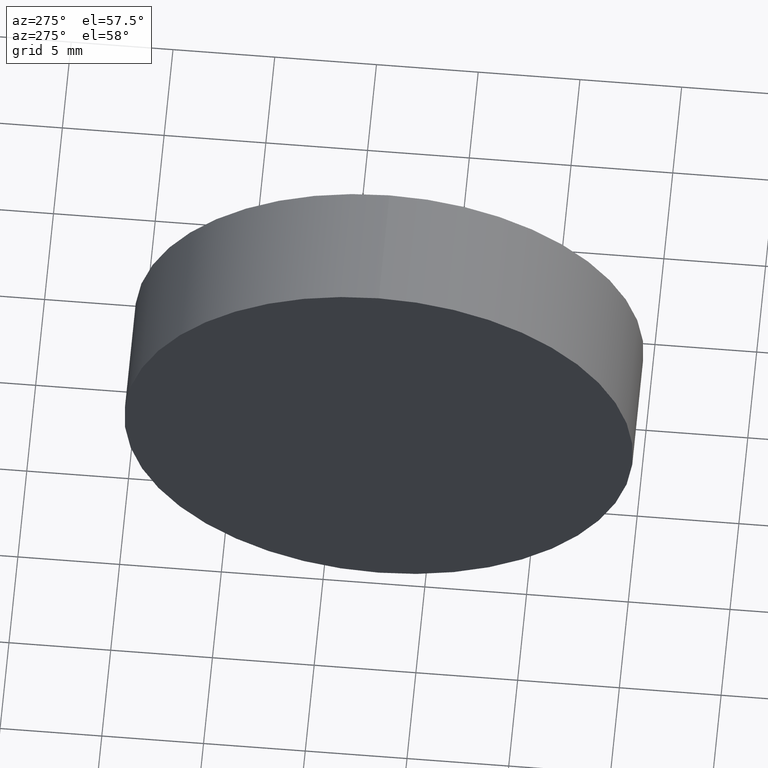
[diagram: clean part render]
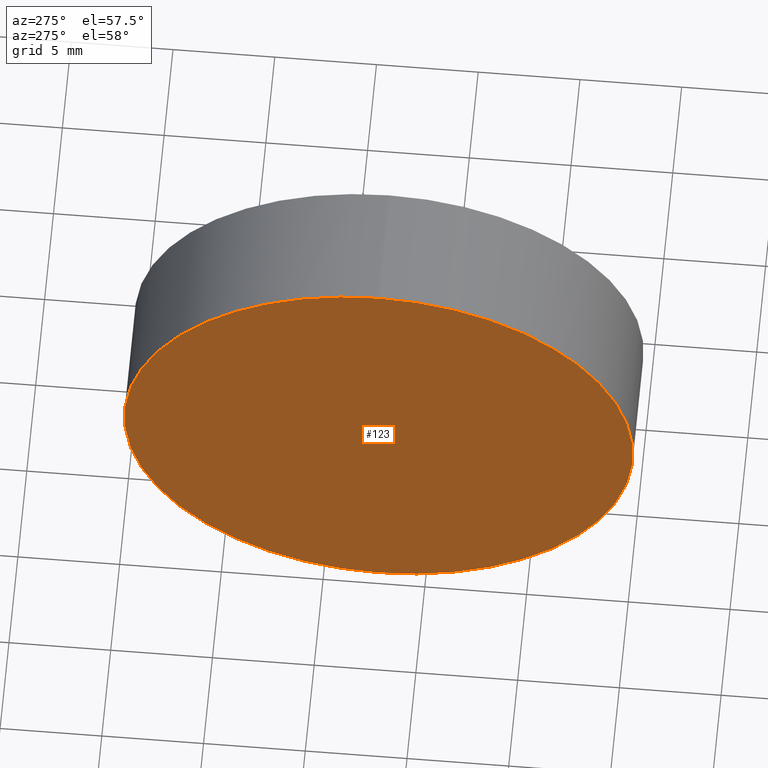
[diagram: same view with one face highlighted and labeled with its STEP entity id]
A machine part, auxiliary view. The second image highlights one B-rep face of the part: STEP entity #123.
In plain terms, the highlighted planar face has unit normal (1, 0, 0).
Its self-contained STEP definition (entity closure, byte-faithful):
#4 = ORIENTED_EDGE ( 'NONE', *, *, #132, .T. ) ;
#19 = CIRCLE ( 'NONE', #43, 12.49999999999999600 ) ;
#21 = DIRECTION ( 'NONE',  ( -1.000000000000000000, -0.0000000000000000000, -0.0000000000000000000 ) ) ;
#24 = CIRCLE ( 'NONE', #117, 12.49999999999999600 ) ;
#38 = PLANE ( 'NONE',  #135 ) ;
#42 = EDGE_CURVE ( 'NONE', #50, #71, #24, .T. ) ;
#43 = AXIS2_PLACEMENT_3D ( 'NONE', #88, #21, #94 ) ;
#45 = CARTESIAN_POINT ( 'NONE',  ( 260.2862081684760400, 77.29317934901541800, 0.0000000000000000000 ) ) ;
#47 = CARTESIAN_POINT ( 'NONE',  ( 260.2862081684760400, 77.29317934901541800, 0.0000000000000000000 ) ) ;
#50 = VERTEX_POINT ( 'NONE', #83 ) ;
#60 = EDGE_LOOP ( 'NONE', ( #4, #61 ) ) ;
#61 = ORIENTED_EDGE ( 'NONE', *, *, #42, .T. ) ;
#63 = DIRECTION ( 'NONE',  ( -1.000000000000000000, -0.0000000000000000000, -0.0000000000000000000 ) ) ;
#67 = DIRECTION ( 'NONE',  ( 0.0000000000000000000, 0.0000000000000000000, -1.000000000000000000 ) ) ;
#71 = VERTEX_POINT ( 'NONE', #137 ) ;
#74 = DIRECTION ( 'NONE',  ( 0.0000000000000000000, 0.0000000000000000000, 1.000000000000000000 ) ) ;
#83 = CARTESIAN_POINT ( 'NONE',  ( 260.2862081684760400, 77.29317934901541800, -12.49999999999999600 ) ) ;
#85 = DIRECTION ( 'NONE',  ( 1.000000000000000000, 0.0000000000000000000, 0.0000000000000000000 ) ) ;
#88 = CARTESIAN_POINT ( 'NONE',  ( 260.2862081684760400, 77.29317934901541800, 0.0000000000000000000 ) ) ;
#94 = DIRECTION ( 'NONE',  ( 0.0000000000000000000, 0.0000000000000000000, 1.000000000000000000 ) ) ;
#117 = AXIS2_PLACEMENT_3D ( 'NONE', #45, #63, #74 ) ;
#119 = FACE_OUTER_BOUND ( 'NONE', #60, .T. ) ;
#123 = ADVANCED_FACE ( 'NONE', ( #119 ), #38, .F. ) ;
#132 = EDGE_CURVE ( 'NONE', #71, #50, #19, .T. ) ;
#135 = AXIS2_PLACEMENT_3D ( 'NONE', #47, #85, #67 ) ;
#137 = CARTESIAN_POINT ( 'NONE',  ( 260.2862081684760400, 77.29317934901541800, 12.49999999999999600 ) ) ;